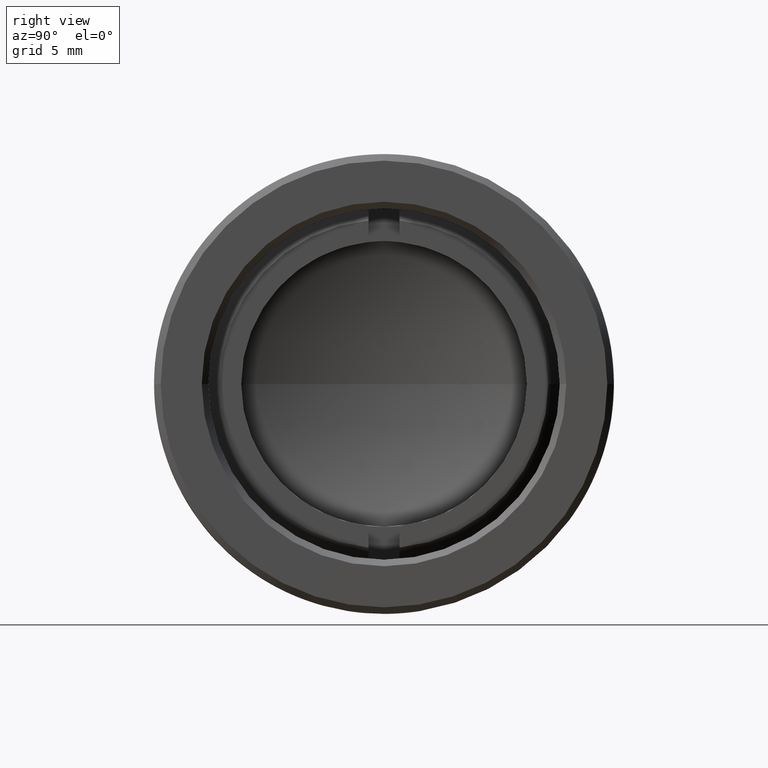
[diagram: clean part render]
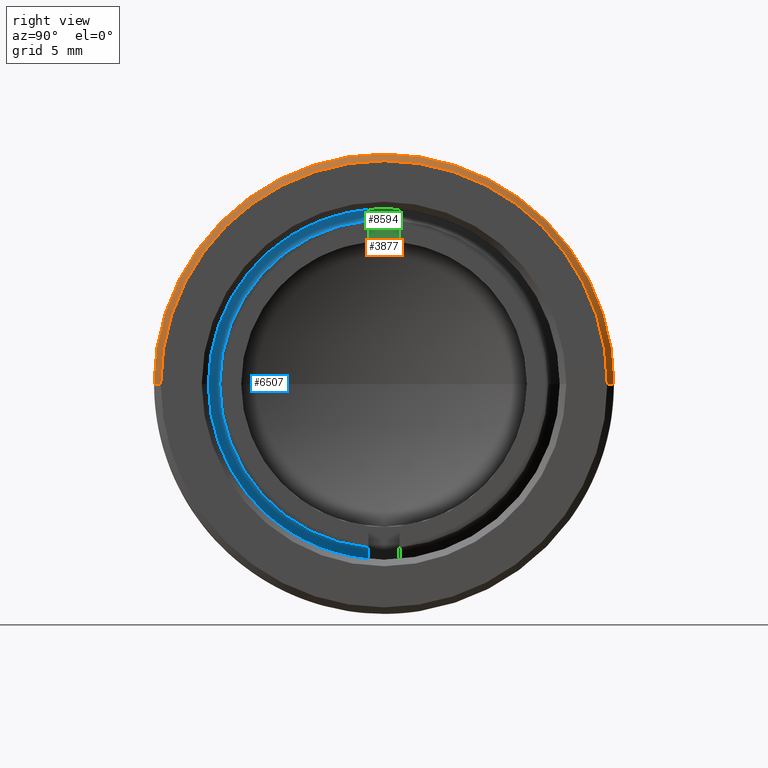
[diagram: same view with three faces highlighted in distinct colors, each labeled with its STEP entity id]
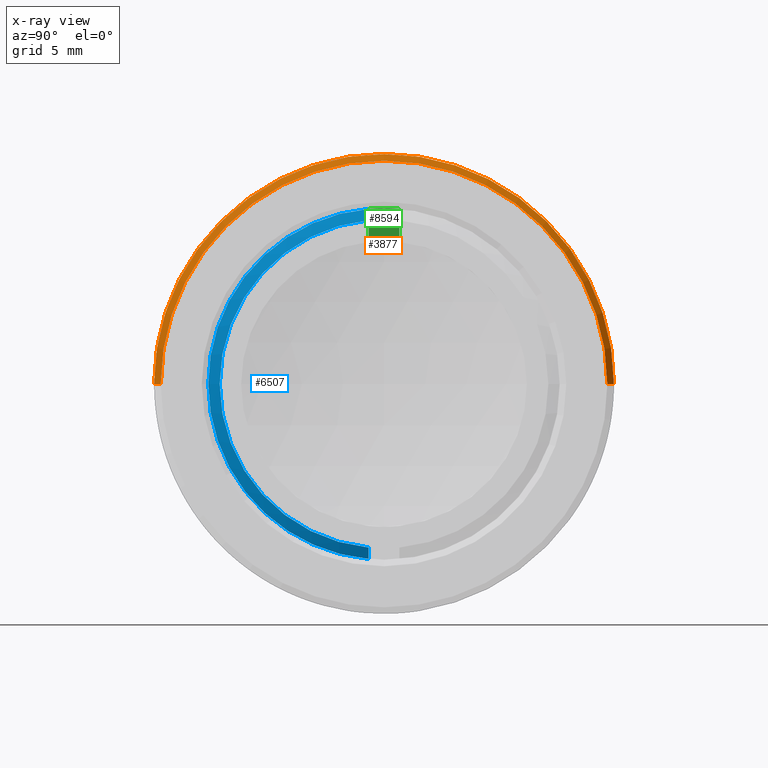
[diagram: x-ray of the same camera — body ghosted, the three highlighted faces saturated]
A machine part, right view with three faces highlighted in distinct colors.
The next image is the same camera in x-ray (body ghosted, the three faces saturated) — at least one of them is partly hidden behind the body in this view.
Their STEP definitions:

[orange] entity #3877 — the highlighted conical surface has half-angle 45 deg.
#75 = EDGE_CURVE ( 'NONE', #10013, #1089, #2486, .T. ) ;
#133 = CARTESIAN_POINT ( 'NONE',  ( 0.2550000000000000600, 1.295063990098326300E-016, 0.0000000000000000000 ) ) ;
#313 = EDGE_CURVE ( 'NONE', #10013, #6372, #9238, .T. ) ;
#539 = ORIENTED_EDGE ( 'NONE', *, *, #9235, .F. ) ;
#1089 = VERTEX_POINT ( 'NONE', #6938 ) ;
#1140 = DIRECTION ( 'NONE',  ( 1.000000000000000000, 3.361775527071165300E-016, -0.0000000000000000000 ) ) ;
#1969 = CARTESIAN_POINT ( 'NONE',  ( 0.2449999999999998800, 1.261446234827614100E-016, 0.0000000000000000000 ) ) ;
#2241 = VECTOR ( 'NONE', #2891, 39.37007874015748100 ) ;
#2486 = LINE ( 'NONE', #3891, #2241 ) ;
#2741 = DIRECTION ( 'NONE',  ( -2.926979993211710600E-016, 1.000000000000000000, 0.0000000000000000000 ) ) ;
#2891 = DIRECTION ( 'NONE',  ( -0.7071067811865501300, 0.7071067811865449100, 8.659560562354903300E-017 ) ) ;
#3308 = ORIENTED_EDGE ( 'NONE', *, *, #5497, .F. ) ;
#3327 = VECTOR ( 'NONE', #7408, 39.37007874015748100 ) ;
#3877 = ADVANCED_FACE ( 'NONE', ( #5887 ), #5656, .T. ) ;
#3891 = CARTESIAN_POINT ( 'NONE',  ( 0.2549999999999999500, 0.3399999999999999700, 4.163799117100999100E-017 ) ) ;
#4187 = CIRCLE ( 'NONE', #4296, 0.3499999999999999800 ) ;
#4296 = AXIS2_PLACEMENT_3D ( 'NONE', #1969, #7350, #2741 ) ;
#4410 = ORIENTED_EDGE ( 'NONE', *, *, #75, .T. ) ;
#5395 = AXIS2_PLACEMENT_3D ( 'NONE', #133, #9360, #7854 ) ;
#5497 = EDGE_CURVE ( 'NONE', #6486, #1089, #4187, .T. ) ;
#5643 = CARTESIAN_POINT ( 'NONE',  ( 0.2549999999999999500, 0.3399999999999999700, 4.225031457058367200E-017 ) ) ;
#5656 = CONICAL_SURFACE ( 'NONE', #5395, 0.3399999999999998600, 0.7853981633974449500 ) ;
#5738 = CARTESIAN_POINT ( 'NONE',  ( 0.2550000000000000600, 1.295063990098326300E-016, 0.0000000000000000000 ) ) ;
#5841 = LINE ( 'NONE', #8929, #3327 ) ;
#5887 = FACE_OUTER_BOUND ( 'NONE', #8911, .T. ) ;
#6372 = VERTEX_POINT ( 'NONE', #7647 ) ;
#6486 = VERTEX_POINT ( 'NONE', #7943 ) ;
#6517 = DIRECTION ( 'NONE',  ( -3.013067640070879900E-016, 1.000000000000000000, 0.0000000000000000000 ) ) ;
#6938 = CARTESIAN_POINT ( 'NONE',  ( 0.2449999999999997700, 0.3500000000000000900, 0.0000000000000000000 ) ) ;
#7350 = DIRECTION ( 'NONE',  ( -1.000000000000000000, -3.361775527071168300E-016, 0.0000000000000000000 ) ) ;
#7408 = DIRECTION ( 'NONE',  ( -0.7071067811865496800, -0.7071067811865453500, 0.0000000000000000000 ) ) ;
#7647 = CARTESIAN_POINT ( 'NONE',  ( 0.2550000000000001700, -0.3399999999999997500, 0.0000000000000000000 ) ) ;
#7731 = ORIENTED_EDGE ( 'NONE', *, *, #313, .F. ) ;
#7854 = DIRECTION ( 'NONE',  ( 3.013067640070879900E-016, -1.000000000000000000, 0.0000000000000000000 ) ) ;
#7943 = CARTESIAN_POINT ( 'NONE',  ( 0.2450000000000000000, -0.3499999999999998100, 4.286263797015736000E-017 ) ) ;
#8911 = EDGE_LOOP ( 'NONE', ( #7731, #4410, #3308, #539 ) ) ;
#8929 = CARTESIAN_POINT ( 'NONE',  ( 0.2550000000000001700, -0.3399999999999997500, 0.0000000000000000000 ) ) ;
#9144 = AXIS2_PLACEMENT_3D ( 'NONE', #5738, #1140, #6517 ) ;
#9235 = EDGE_CURVE ( 'NONE', #6372, #6486, #5841, .T. ) ;
#9238 = CIRCLE ( 'NONE', #9144, 0.3399999999999998600 ) ;
#9360 = DIRECTION ( 'NONE',  ( -1.000000000000000000, -3.361775527071168300E-016, 0.0000000000000000000 ) ) ;
#10013 = VERTEX_POINT ( 'NONE', #5643 ) ;

[blue] entity #6507 — the highlighted conical surface has half-angle 60 deg.
#1 = DIRECTION ( 'NONE',  ( -1.000000000000000000, -3.361775527071162900E-016, -1.004737734495143400E-030 ) ) ;
#41 = CARTESIAN_POINT ( 'NONE',  ( 0.08945637855010203600, 7.385434948453189500E-017, -1.787122349034170200E-030 ) ) ;
#187 = ORIENTED_EDGE ( 'NONE', *, *, #2206, .F. ) ;
#226 = ORIENTED_EDGE ( 'NONE', *, *, #1793, .F. ) ;
#308 = CARTESIAN_POINT ( 'NONE',  ( 0.07945637855010226300, -0.02349999999999991300, -0.2664657576500216200 ) ) ;
#631 = AXIS2_PLACEMENT_3D ( 'NONE', #8459, #3852, #9266 ) ;
#797 = CARTESIAN_POINT ( 'NONE',  ( 0.07945637855010226300, -0.02349999999999993800, 0.2664657576500216200 ) ) ;
#815 = CIRCLE ( 'NONE', #631, 0.2675000000000000700 ) ;
#1176 = ORIENTED_EDGE ( 'NONE', *, *, #4228, .F. ) ;
#1191 = DIRECTION ( 'NONE',  ( -1.000000000000000000, -3.361775527071162900E-016, -1.004737734495143400E-030 ) ) ;
#1793 = EDGE_CURVE ( 'NONE', #5719, #3645, #6647, .T. ) ;
#2206 = EDGE_CURVE ( 'NONE', #5451, #9807, #815, .T. ) ;
#2425 = CIRCLE ( 'NONE', #3633, 0.2501794919243116000 ) ;
#2860 = FACE_OUTER_BOUND ( 'NONE', #9581, .T. ) ;
#3040 = B_SPLINE_CURVE_WITH_KNOTS ( 'NONE', 3,
 ( #797, #5388, #3869, #9284 ),
 .UNSPECIFIED., .F., .F.,
 ( 4, 4 ),
 ( 0.0000000000000000000, 0.0005095826394588692800 ),
 .UNSPECIFIED. ) ;
#3235 = CARTESIAN_POINT ( 'NONE',  ( 0.08945637855010205000, -0.02349999999999991300, -0.2490733389576385300 ) ) ;
#3371 = CARTESIAN_POINT ( 'NONE',  ( 0.08279038666487610600, -0.02349999999999991300, -0.2606686727792845700 ) ) ;
#3633 = AXIS2_PLACEMENT_3D ( 'NONE', #41, #5417, #7249 ) ;
#3645 = VERTEX_POINT ( 'NONE', #9196 ) ;
#3709 = CARTESIAN_POINT ( 'NONE',  ( 0.08945637855010205000, -0.02349999999999993800, 0.2490733389576385300 ) ) ;
#3852 = DIRECTION ( 'NONE',  ( -1.000000000000000000, -3.361775527071162900E-016, -1.004737734495143400E-030 ) ) ;
#3869 = CARTESIAN_POINT ( 'NONE',  ( 0.08612376686479310300, -0.02349999999999993800, 0.2548712267163700300 ) ) ;
#4182 = CARTESIAN_POINT ( 'NONE',  ( 0.07945637855010233300, -0.2675000000000000200, -4.760853483155499000E-017 ) ) ;
#4228 = EDGE_CURVE ( 'NONE', #7429, #5719, #2425, .T. ) ;
#4303 = CARTESIAN_POINT ( 'NONE',  ( 0.08945637855010203600, 7.385434948453189500E-017, -1.787122349034170200E-030 ) ) ;
#4389 = CARTESIAN_POINT ( 'NONE',  ( 0.07945637855010226300, -0.02349999999999993800, 0.2664657576500216200 ) ) ;
#4593 = CARTESIAN_POINT ( 'NONE',  ( 0.07945637855010225000, 7.049257395746078400E-017, -1.797169726379121600E-030 ) ) ;
#4904 = CARTESIAN_POINT ( 'NONE',  ( 0.08945637855010205000, -0.02349999999999991300, -0.2490733389576385300 ) ) ;
#5065 = DIRECTION ( 'NONE',  ( -3.412360027808987500E-016, 1.000000000000000000, 5.551115123125781500E-017 ) ) ;
#5216 = EDGE_CURVE ( 'NONE', #3645, #5451, #9283, .T. ) ;
#5368 = DIRECTION ( 'NONE',  ( 3.191411207551708700E-016, -1.000000000000000000, -5.551115123125781500E-017 ) ) ;
#5388 = CARTESIAN_POINT ( 'NONE',  ( 0.08279038666487609200, -0.02349999999999993800, 0.2606686727792845700 ) ) ;
#5417 = DIRECTION ( 'NONE',  ( 1.000000000000000000, 3.361775527071162900E-016, 1.004737734495143400E-030 ) ) ;
#5451 = VERTEX_POINT ( 'NONE', #4182 ) ;
#5612 = ORIENTED_EDGE ( 'NONE', *, *, #9488, .F. ) ;
#5719 = VERTEX_POINT ( 'NONE', #3235 ) ;
#6507 = ADVANCED_FACE ( 'NONE', ( #2860 ), #8267, .T. ) ;
#6647 = B_SPLINE_CURVE_WITH_KNOTS ( 'NONE', 3,
 ( #4904, #9546, #3371, #308 ),
 .UNSPECIFIED., .F., .F.,
 ( 4, 4 ),
 ( 0.0000000000000000000, 0.0005095826394588692800 ),
 .UNSPECIFIED. ) ;
#6731 = ORIENTED_EDGE ( 'NONE', *, *, #5216, .F. ) ;
#7249 = DIRECTION ( 'NONE',  ( 3.412360027808987500E-016, -1.000000000000000000, -5.551115123125781500E-017 ) ) ;
#7429 = VERTEX_POINT ( 'NONE', #3709 ) ;
#7594 = AXIS2_PLACEMENT_3D ( 'NONE', #4593, #1, #5368 ) ;
#8214 = AXIS2_PLACEMENT_3D ( 'NONE', #4303, #1191, #5065 ) ;
#8267 = CONICAL_SURFACE ( 'NONE', #8214, 0.2501794919243116000, 1.047197551196599200 ) ;
#8459 = CARTESIAN_POINT ( 'NONE',  ( 0.07945637855010225000, 7.049257395746078400E-017, -1.797169726379121600E-030 ) ) ;
#9196 = CARTESIAN_POINT ( 'NONE',  ( 0.07945637855010226300, -0.02349999999999991300, -0.2664657576500216200 ) ) ;
#9266 = DIRECTION ( 'NONE',  ( 3.191411207551708700E-016, -1.000000000000000000, -5.551115123125781500E-017 ) ) ;
#9283 = CIRCLE ( 'NONE', #7594, 0.2675000000000000700 ) ;
#9284 = CARTESIAN_POINT ( 'NONE',  ( 0.08945637855010205000, -0.02349999999999993800, 0.2490733389576385300 ) ) ;
#9488 = EDGE_CURVE ( 'NONE', #9807, #7429, #3040, .T. ) ;
#9546 = CARTESIAN_POINT ( 'NONE',  ( 0.08612376686479311600, -0.02349999999999991300, -0.2548712267163700300 ) ) ;
#9581 = EDGE_LOOP ( 'NONE', ( #5612, #187, #6731, #226, #1176 ) ) ;
#9807 = VERTEX_POINT ( 'NONE', #4389 ) ;

[green] entity #8594 — the highlighted planar face has unit normal (1, 0, 0).
#509 = AXIS2_PLACEMENT_3D ( 'NONE', #1847, #7236, #2613 ) ;
#603 = EDGE_CURVE ( 'NONE', #6767, #3217, #5101, .T. ) ;
#838 = CARTESIAN_POINT ( 'NONE',  ( 0.05445637855010204000, -0.02349999999999994800, 0.2664657576500216200 ) ) ;
#1155 = LINE ( 'NONE', #838, #7292 ) ;
#1677 = CARTESIAN_POINT ( 'NONE',  ( 0.05445637855010203300, 0.02350000000000004900, 0.2664657576500216200 ) ) ;
#1680 = DIRECTION ( 'NONE',  ( 1.043202164063748000E-030, -1.144170074975692100E-016, -1.000000000000000000 ) ) ;
#1704 = DIRECTION ( 'NONE',  ( 1.000000000000000000, 3.361775527071162900E-016, 1.004737734495143400E-030 ) ) ;
#1733 = ORIENTED_EDGE ( 'NONE', *, *, #8035, .T. ) ;
#1739 = PLANE ( 'NONE',  #2325 ) ;
#1847 = CARTESIAN_POINT ( 'NONE',  ( 0.05445637855010203300, 6.208813513978281700E-017, -1.822288169741500000E-030 ) ) ;
#2325 = AXIS2_PLACEMENT_3D ( 'NONE', #5552, #4029, #9446 ) ;
#2613 = DIRECTION ( 'NONE',  ( 3.532562060772754400E-016, -1.000000000000000000, -5.551115123125782100E-017 ) ) ;
#2702 = ORIENTED_EDGE ( 'NONE', *, *, #5786, .T. ) ;
#2854 = CARTESIAN_POINT ( 'NONE',  ( 0.05445637855010204000, -0.02349999999999994800, 0.2664657576500216200 ) ) ;
#3217 = VERTEX_POINT ( 'NONE', #2854 ) ;
#3440 = CARTESIAN_POINT ( 'NONE',  ( 0.05445637855010204000, -0.02349999999999984000, 0.2162267328523464800 ) ) ;
#3682 = FACE_OUTER_BOUND ( 'NONE', #9937, .T. ) ;
#4023 = VERTEX_POINT ( 'NONE', #9644 ) ;
#4029 = DIRECTION ( 'NONE',  ( 1.000000000000000000, 3.361775527071162900E-016, 1.004737734495143400E-030 ) ) ;
#4676 = VECTOR ( 'NONE', #7190, 39.37007874015748100 ) ;
#4795 = CIRCLE ( 'NONE', #509, 0.2175000000000000000 ) ;
#4803 = AXIS2_PLACEMENT_3D ( 'NONE', #6294, #1704, #7079 ) ;
#5101 = CIRCLE ( 'NONE', #4803, 0.2675000000000000700 ) ;
#5552 = CARTESIAN_POINT ( 'NONE',  ( 0.05445637855010203300, 6.208813513978281700E-017, -1.822288169741500000E-030 ) ) ;
#5786 = EDGE_CURVE ( 'NONE', #6127, #4023, #4795, .T. ) ;
#6127 = VERTEX_POINT ( 'NONE', #3440 ) ;
#6276 = ORIENTED_EDGE ( 'NONE', *, *, #603, .T. ) ;
#6294 = CARTESIAN_POINT ( 'NONE',  ( 0.05445637855010203300, 6.208813513978281700E-017, -1.822288169741500000E-030 ) ) ;
#6406 = CARTESIAN_POINT ( 'NONE',  ( 0.05445637855010203300, 0.02350000000000004900, 0.2664657576500216200 ) ) ;
#6443 = EDGE_CURVE ( 'NONE', #4023, #6767, #6982, .T. ) ;
#6767 = VERTEX_POINT ( 'NONE', #1677 ) ;
#6982 = LINE ( 'NONE', #6406, #4676 ) ;
#7079 = DIRECTION ( 'NONE',  ( 3.510552328306879300E-016, -1.000000000000000000, -5.551115123125781500E-017 ) ) ;
#7090 = ORIENTED_EDGE ( 'NONE', *, *, #6443, .T. ) ;
#7190 = DIRECTION ( 'NONE',  ( -9.289500989887812000E-031, -2.254393099600848700E-016, 1.000000000000000000 ) ) ;
#7236 = DIRECTION ( 'NONE',  ( -1.000000000000000000, -3.361775527071162900E-016, -1.004737734495143400E-030 ) ) ;
#7292 = VECTOR ( 'NONE', #1680, 39.37007874015748100 ) ;
#8035 = EDGE_CURVE ( 'NONE', #3217, #6127, #1155, .T. ) ;
#8594 = ADVANCED_FACE ( 'NONE', ( #3682 ), #1739, .T. ) ;
#9446 = DIRECTION ( 'NONE',  ( 3.361775527071162900E-016, -1.000000000000000000, -5.551115123125781500E-017 ) ) ;
#9644 = CARTESIAN_POINT ( 'NONE',  ( 0.05445637855010203300, 0.02350000000000005900, 0.2162267328523464500 ) ) ;
#9937 = EDGE_LOOP ( 'NONE', ( #6276, #1733, #2702, #7090 ) ) ;